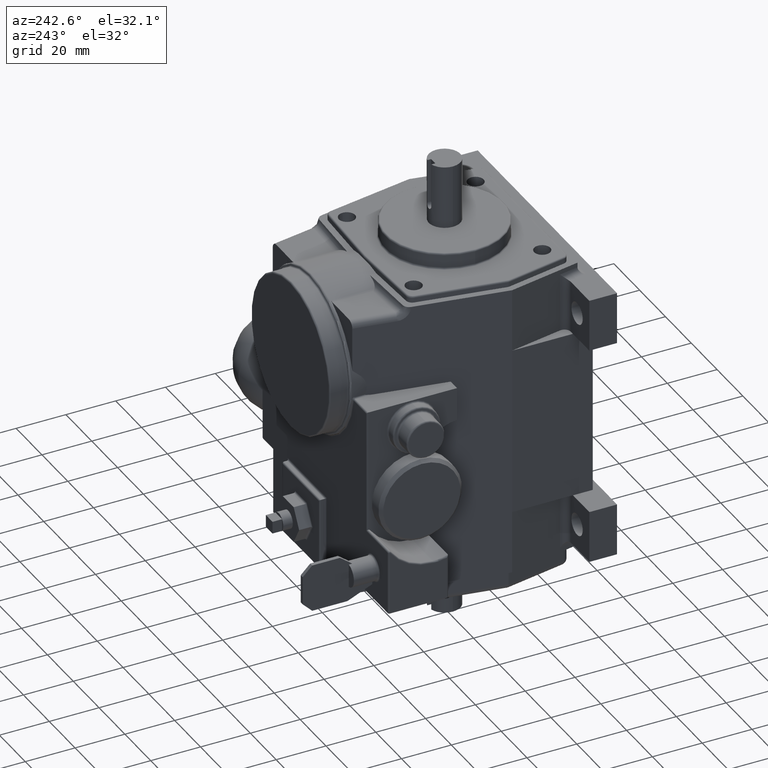
[diagram: clean part render]
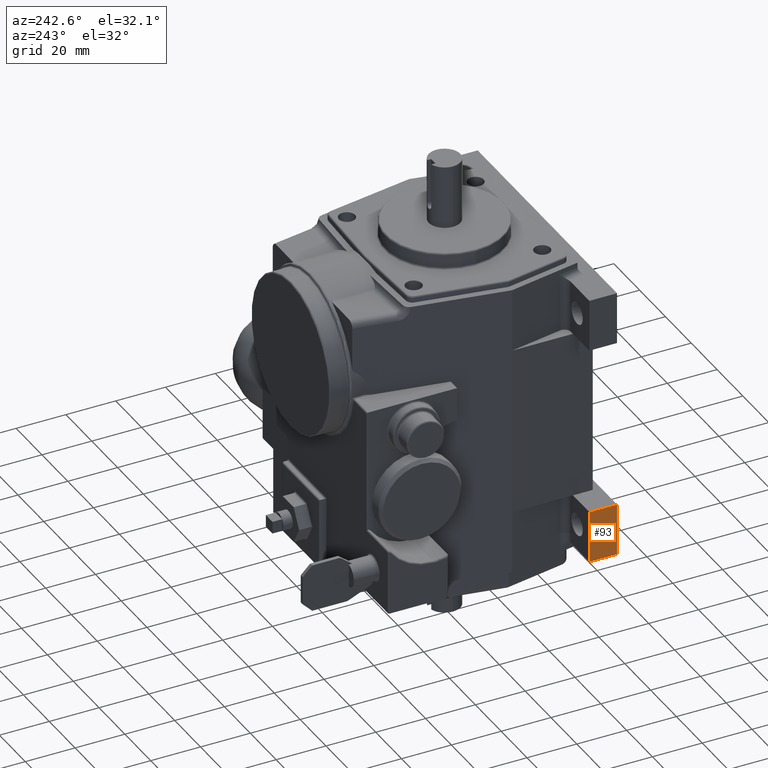
[diagram: same view with one face highlighted and labeled with its STEP entity id]
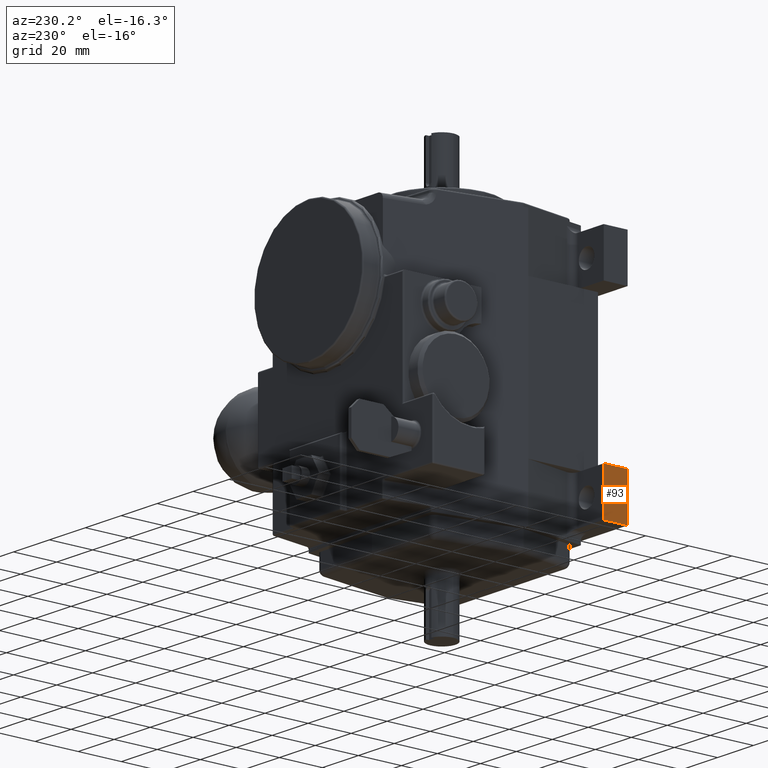
[diagram: same view with one face highlighted and labeled with its STEP entity id]
A machine part, auxiliary view. The second image highlights one B-rep face of the part: STEP entity #93.
A second angle (auxiliary view) of the same face is appended — the face is thin or edge-on in the first view.
In plain terms, the highlighted planar face has unit normal (1, -0, 0).
Its self-contained STEP definition (entity closure, byte-faithful):
#93 = ADVANCED_FACE ( 'NONE', ( #3096 ), #3500, .F. ) ;
#328 = EDGE_LOOP ( 'NONE', ( #1200, #1201, #1202, #1203 ) ) ;
#711 = EDGE_CURVE ( 'NONE', #10098, #10099, #3465, .T. ) ;
#719 = EDGE_CURVE ( 'NONE', #10098, #10105, #3456, .T. ) ;
#733 = EDGE_CURVE ( 'NONE', #10099, #10111, #4920, .T. ) ;
#744 = EDGE_CURVE ( 'NONE', #10105, #10111, #4927, .T. ) ;
#1200 = ORIENTED_EDGE ( 'NONE', *, *, #744, .T. ) ;
#1201 = ORIENTED_EDGE ( 'NONE', *, *, #733, .F. ) ;
#1202 = ORIENTED_EDGE ( 'NONE', *, *, #711, .F. ) ;
#1203 = ORIENTED_EDGE ( 'NONE', *, *, #719, .T. ) ;
#2278 = AXIS2_PLACEMENT_3D ( 'NONE', #3504, #3510, #3511 ) ;
#3096 = FACE_OUTER_BOUND ( 'NONE', #328, .T. ) ;
#3456 = LINE ( 'NONE', #4395, #3467 ) ;
#3465 = LINE ( 'NONE', #4376, #3466 ) ;
#3466 = VECTOR ( 'NONE', #4377, 39.37007874015748100 ) ;
#3467 = VECTOR ( 'NONE', #4396, 39.37007874015748100 ) ;
#3500 = PLANE ( 'NONE',  #2278 ) ;
#3504 = CARTESIAN_POINT ( 'NONE',  ( -2.124999999999998200, 0.4375000000000000000, -2.162499999999999200 ) ) ;
#3510 = DIRECTION ( 'NONE',  ( 1.000000000000000000, -0.0000000000000000000, 3.973597081693475600E-015 ) ) ;
#3511 = DIRECTION ( 'NONE',  ( 3.973597081693475600E-015, 0.0000000000000000000, -1.000000000000000000 ) ) ;
#4376 = CARTESIAN_POINT ( 'NONE',  ( -2.124999999999998200, 0.4375000000000000000, -2.162499999999999200 ) ) ;
#4377 = DIRECTION ( 'NONE',  ( -3.973597081693476400E-015, 0.0000000000000000000, 1.000000000000000000 ) ) ;
#4395 = CARTESIAN_POINT ( 'NONE',  ( -2.124999999999998200, 0.4375000000000000000, -2.162499999999999200 ) ) ;
#4396 = DIRECTION ( 'NONE',  ( -0.0000000000000000000, -1.000000000000000000, -0.0000000000000000000 ) ) ;
#4423 = CARTESIAN_POINT ( 'NONE',  ( -2.125000000000001300, 0.4375000000000000000, -1.337499999999999700 ) ) ;
#4424 = DIRECTION ( 'NONE',  ( -0.0000000000000000000, -1.000000000000000000, -0.0000000000000000000 ) ) ;
#4440 = CARTESIAN_POINT ( 'NONE',  ( -2.124999999999998200, 0.0000000000000000000, -2.162499999999999200 ) ) ;
#4450 = DIRECTION ( 'NONE',  ( -3.973597081693476400E-015, 0.0000000000000000000, 1.000000000000000000 ) ) ;
#4920 = LINE ( 'NONE', #4423, #4921 ) ;
#4921 = VECTOR ( 'NONE', #4424, 39.37007874015748100 ) ;
#4927 = LINE ( 'NONE', #4440, #4940 ) ;
#4940 = VECTOR ( 'NONE', #4450, 39.37007874015748100 ) ;
#9450 = CARTESIAN_POINT ( 'NONE',  ( -2.124999999999998200, 0.4375000000000000000, -2.162499999999999200 ) ) ;
#9451 = CARTESIAN_POINT ( 'NONE',  ( -2.125000000000001300, 0.4375000000000000000, -1.337499999999999700 ) ) ;
#9457 = CARTESIAN_POINT ( 'NONE',  ( -2.124999999999998200, 0.0000000000000000000, -2.162499999999999200 ) ) ;
#9463 = CARTESIAN_POINT ( 'NONE',  ( -2.125000000000001300, 0.0000000000000000000, -1.337499999999999700 ) ) ;
#10098 = VERTEX_POINT ( 'NONE', #9450 ) ;
#10099 = VERTEX_POINT ( 'NONE', #9451 ) ;
#10105 = VERTEX_POINT ( 'NONE', #9457 ) ;
#10111 = VERTEX_POINT ( 'NONE', #9463 ) ;